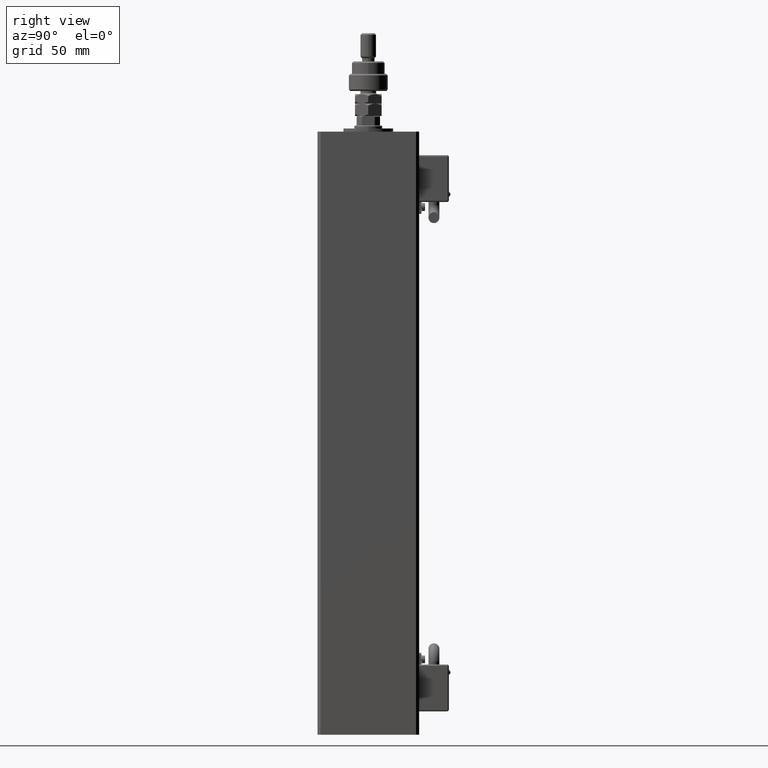
[diagram: clean part render]
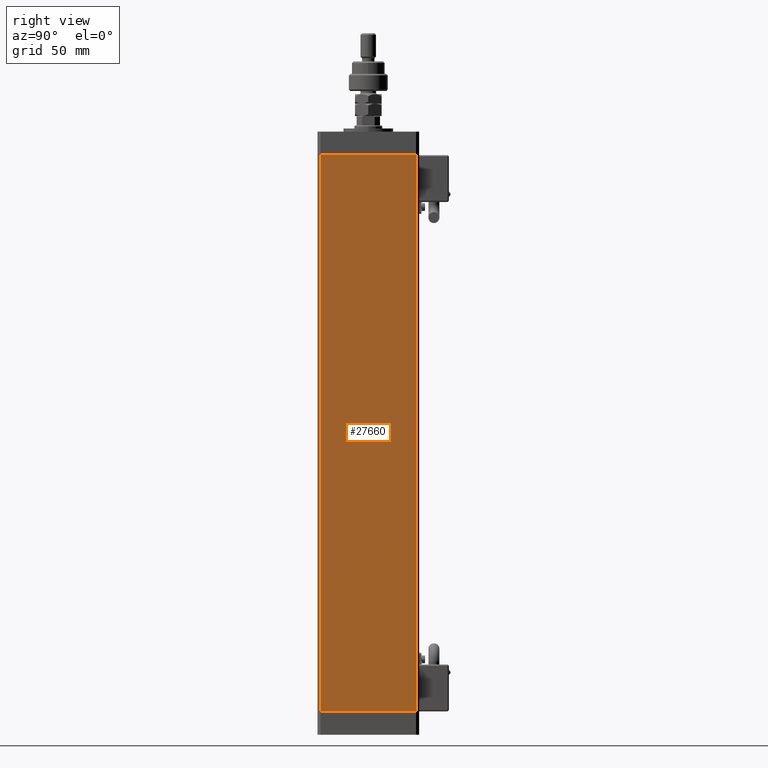
[diagram: same view with one face highlighted and labeled with its STEP entity id]
A machine part, right view. The second image highlights one B-rep face of the part: STEP entity #27660.
In plain terms, the highlighted planar face has unit normal (1, -0, 0).
Its self-contained STEP definition (entity closure, byte-faithful):
#469 = DIRECTION ( 'NONE',  ( 2.275047181608927644E-16, 1.000000000000000000, 0.000000000000000000 ) ) ;
#1852 = CARTESIAN_POINT ( 'NONE',  ( 37.49999999999999289, -30.50000000000000000, 0.000000000000000000 ) ) ;
#2419 = VECTOR ( 'NONE', #33606, 1000.000000000000000 ) ;
#3856 = AXIS2_PLACEMENT_3D ( 'NONE', #44735, #48524, #469 ) ;
#4765 = CARTESIAN_POINT ( 'NONE',  ( 37.49999999999999289, -30.50000000000000000, 356.0000000000000000 ) ) ;
#8018 = LINE ( 'NONE', #34219, #31635 ) ;
#8177 = CARTESIAN_POINT ( 'NONE',  ( 37.50000000000000711, 30.50000000000000000, 0.000000000000000000 ) ) ;
#9303 = CARTESIAN_POINT ( 'NONE',  ( 37.50000000000000711, 30.50000000000000000, 356.0000000000000000 ) ) ;
#10439 = VERTEX_POINT ( 'NONE', #1852 ) ;
#14897 = EDGE_CURVE ( 'NONE', #34851, #10439, #8018, .T. ) ;
#15530 = EDGE_LOOP ( 'NONE', ( #39618, #31115, #33242, #26365 ) ) ;
#17240 = DIRECTION ( 'NONE',  ( -2.275047181608927644E-16, -1.000000000000000000, 0.000000000000000000 ) ) ;
#17535 = LINE ( 'NONE', #52485, #27722 ) ;
#25499 = DIRECTION ( 'NONE',  ( -0.000000000000000000, -0.000000000000000000, -1.000000000000000000 ) ) ;
#26365 = ORIENTED_EDGE ( 'NONE', *, *, #14897, .T. ) ;
#26415 = FACE_OUTER_BOUND ( 'NONE', #15530, .T. ) ;
#27144 = EDGE_CURVE ( 'NONE', #29276, #29719, #40141, .T. ) ;
#27660 = ADVANCED_FACE ( 'NONE', ( #26415 ), #40065, .T. ) ;
#27722 = VECTOR ( 'NONE', #17240, 1000.000000000000000 ) ;
#28159 = CARTESIAN_POINT ( 'NONE',  ( 37.50000000000000711, 30.50000000000000000, 356.0000000000000000 ) ) ;
#29276 = VERTEX_POINT ( 'NONE', #28159 ) ;
#29719 = VERTEX_POINT ( 'NONE', #8177 ) ;
#31115 = ORIENTED_EDGE ( 'NONE', *, *, #27144, .F. ) ;
#31635 = VECTOR ( 'NONE', #25499, 1000.000000000000000 ) ;
#33242 = ORIENTED_EDGE ( 'NONE', *, *, #56085, .T. ) ;
#33330 = LINE ( 'NONE', #36049, #2419 ) ;
#33606 = DIRECTION ( 'NONE',  ( -2.275047181608927644E-16, -1.000000000000000000, 0.000000000000000000 ) ) ;
#34219 = CARTESIAN_POINT ( 'NONE',  ( 37.49999999999999289, -30.50000000000000000, 356.0000000000000000 ) ) ;
#34851 = VERTEX_POINT ( 'NONE', #4765 ) ;
#36049 = CARTESIAN_POINT ( 'NONE',  ( 37.50000000000000711, 30.50000000000000000, 356.0000000000000000 ) ) ;
#38222 = VECTOR ( 'NONE', #49752, 1000.000000000000000 ) ;
#39618 = ORIENTED_EDGE ( 'NONE', *, *, #52634, .F. ) ;
#40065 = PLANE ( 'NONE',  #3856 ) ;
#40141 = LINE ( 'NONE', #9303, #38222 ) ;
#44735 = CARTESIAN_POINT ( 'NONE',  ( 37.50000000000000711, 30.50000000000000000, 356.0000000000000000 ) ) ;
#48524 = DIRECTION ( 'NONE',  ( 1.000000000000000000, -2.275047181608927644E-16, 0.000000000000000000 ) ) ;
#49752 = DIRECTION ( 'NONE',  ( -0.000000000000000000, -0.000000000000000000, -1.000000000000000000 ) ) ;
#52485 = CARTESIAN_POINT ( 'NONE',  ( 37.50000000000000711, 30.50000000000000000, 0.000000000000000000 ) ) ;
#52634 = EDGE_CURVE ( 'NONE', #29719, #10439, #17535, .T. ) ;
#56085 = EDGE_CURVE ( 'NONE', #29276, #34851, #33330, .T. ) ;